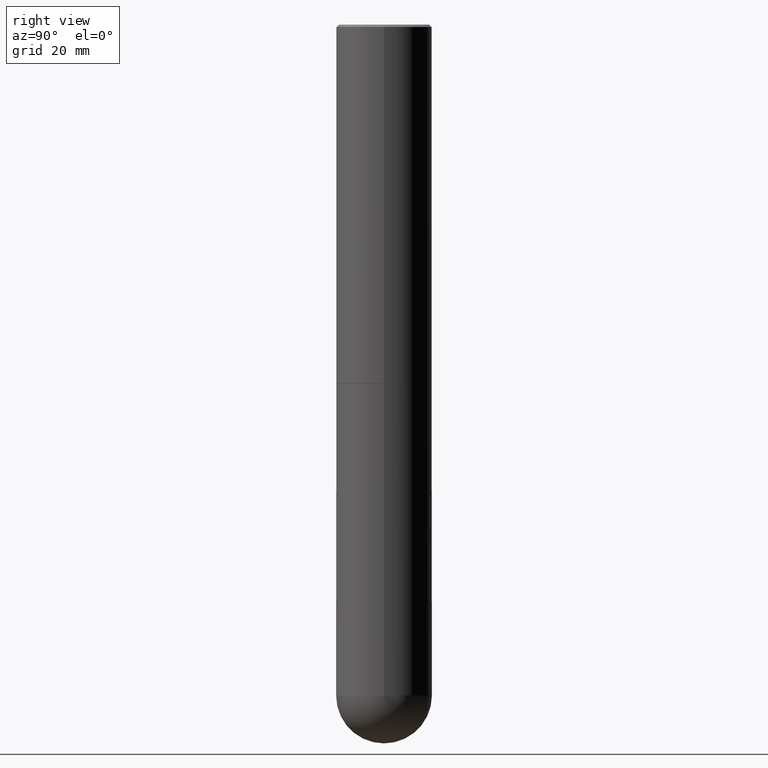
[diagram: clean part render]
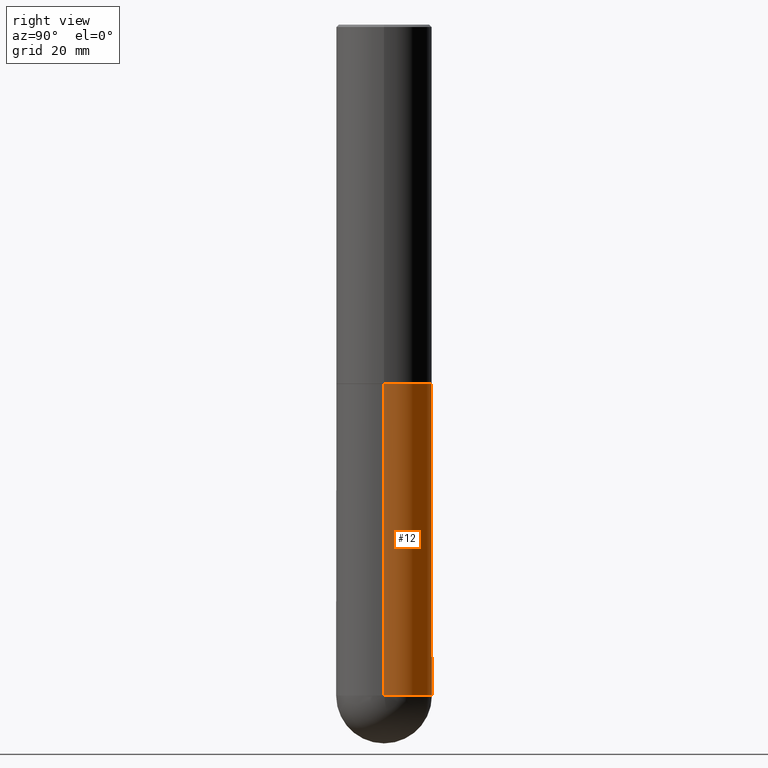
[diagram: same view with one face highlighted and labeled with its STEP entity id]
A machine part, right view. The second image highlights one B-rep face of the part: STEP entity #12.
In plain terms, the highlighted cylindrical surface (partial cylindrical patch) has radius 10 mm, axis along (-0, 0, 1).
Its self-contained STEP definition (entity closure, byte-faithful):
#1 = DIRECTION ( 'NONE',  ( -2.445468806185136877E-29, 3.491481338843145188E-15, 1.000000000000000000 ) ) ;
#12 = ADVANCED_FACE ( 'NONE', ( #362 ), #171, .T. ) ;
#18 = DIRECTION ( 'NONE',  ( 1.000000000000000000, -6.982962677686267499E-15, 0.000000000000000000 ) ) ;
#19 = DIRECTION ( 'NONE',  ( -2.445468806185136597E-29, 3.491481338843145583E-15, 1.000000000000000000 ) ) ;
#34 = ORIENTED_EDGE ( 'NONE', *, *, #352, .F. ) ;
#36 = ORIENTED_EDGE ( 'NONE', *, *, #149, .F. ) ;
#47 = CARTESIAN_POINT ( 'NONE',  ( 7.220735744022852519E-29, -1.030929694920215502E-14, -2.952700000000000102 ) ) ;
#49 = CARTESIAN_POINT ( 'NONE',  ( 0.000000000000000000, 0.000000000000000000, 0.000000000000000000 ) ) ;
#52 = AXIS2_PLACEMENT_3D ( 'NONE', #49, #370, #109 ) ;
#55 = CARTESIAN_POINT ( 'NONE',  ( -0.3937000000000001054, 2.797406750687515181E-15, -1.936584745033357016E-29 ) ) ;
#86 = LINE ( 'NONE', #392, #279 ) ;
#91 = CARTESIAN_POINT ( 'NONE',  ( 0.3937000000000000499, -1.305848935540723823E-14, -2.952700000000000102 ) ) ;
#95 = VERTEX_POINT ( 'NONE', #307 ) ;
#99 = VERTEX_POINT ( 'NONE', #276 ) ;
#107 = DIRECTION ( 'NONE',  ( 1.000000000000000000, -6.982962677686266711E-15, 0.000000000000000000 ) ) ;
#109 = DIRECTION ( 'NONE',  ( 1.000000000000000000, -6.982962677686266711E-15, 4.876176775795935793E-29 ) ) ;
#118 = EDGE_CURVE ( 'NONE', #159, #99, #236, .T. ) ;
#142 = CARTESIAN_POINT ( 'NONE',  ( 1.347893496593123646E-28, -1.924434684343564878E-14, -5.511800000000000033 ) ) ;
#149 = EDGE_CURVE ( 'NONE', #388, #95, #274, .T. ) ;
#159 = VERTEX_POINT ( 'NONE', #306 ) ;
#160 = EDGE_CURVE ( 'NONE', #259, #159, #250, .T. ) ;
#171 = CYLINDRICAL_SURFACE ( 'NONE', #52, 0.3937000000000001054 ) ;
#183 = EDGE_CURVE ( 'NONE', #99, #95, #315, .T. ) ;
#217 = DIRECTION ( 'NONE',  ( -2.445468806185136877E-29, 3.491481338843145188E-15, 1.000000000000000000 ) ) ;
#236 = CIRCLE ( 'NONE', #396, 0.3937000000000001054 ) ;
#245 = DIRECTION ( 'NONE',  ( 1.000000000000000000, -6.982962677686266711E-15, 0.000000000000000000 ) ) ;
#250 = CIRCLE ( 'NONE', #304, 0.3937000000000001054 ) ;
#259 = VERTEX_POINT ( 'NONE', #410 ) ;
#265 = ORIENTED_EDGE ( 'NONE', *, *, #183, .T. ) ;
#274 = CIRCLE ( 'NONE', #385, 0.3937000000000000499 ) ;
#276 = CARTESIAN_POINT ( 'NONE',  ( -0.3937000000000001054, -1.197941514563138553E-14, -5.511800000000000033 ) ) ;
#279 = VECTOR ( 'NONE', #1, 39.37007874015748143 ) ;
#303 = DIRECTION ( 'NONE',  ( -2.445468806185136597E-29, 3.491481338843145583E-15, 1.000000000000000000 ) ) ;
#304 = AXIS2_PLACEMENT_3D ( 'NONE', #142, #19, #107 ) ;
#306 = CARTESIAN_POINT ( 'NONE',  ( 2.749192406205216928E-15, 0.3936999999999805655, -5.511800000000000921 ) ) ;
#307 = CARTESIAN_POINT ( 'NONE',  ( -0.3937000000000000499, -1.197941514563138553E-14, -2.952700000000000102 ) ) ;
#314 = VECTOR ( 'NONE', #217, 39.37007874015748143 ) ;
#315 = LINE ( 'NONE', #55, #314 ) ;
#319 = EDGE_LOOP ( 'NONE', ( #367, #265, #36, #34, #394 ) ) ;
#333 = DIRECTION ( 'NONE',  ( -2.445468806185136597E-29, 3.491481338843145583E-15, 1.000000000000000000 ) ) ;
#352 = EDGE_CURVE ( 'NONE', #259, #388, #86, .T. ) ;
#362 = FACE_OUTER_BOUND ( 'NONE', #319, .T. ) ;
#367 = ORIENTED_EDGE ( 'NONE', *, *, #118, .T. ) ;
#370 = DIRECTION ( 'NONE',  ( -2.445468806185136597E-29, 3.491481338843145583E-15, 1.000000000000000000 ) ) ;
#385 = AXIS2_PLACEMENT_3D ( 'NONE', #47, #303, #18 ) ;
#388 = VERTEX_POINT ( 'NONE', #91 ) ;
#392 = CARTESIAN_POINT ( 'NONE',  ( 0.3937000000000001054, -2.749192406205084005E-15, 1.919750796630860452E-29 ) ) ;
#394 = ORIENTED_EDGE ( 'NONE', *, *, #160, .T. ) ;
#396 = AXIS2_PLACEMENT_3D ( 'NONE', #399, #333, #245 ) ;
#399 = CARTESIAN_POINT ( 'NONE',  ( 1.347893496593123646E-28, -1.924434684343564878E-14, -5.511800000000000033 ) ) ;
#410 = CARTESIAN_POINT ( 'NONE',  ( 0.3937000000000001054, -1.752601430252398275E-14, -5.511800000000000033 ) ) ;